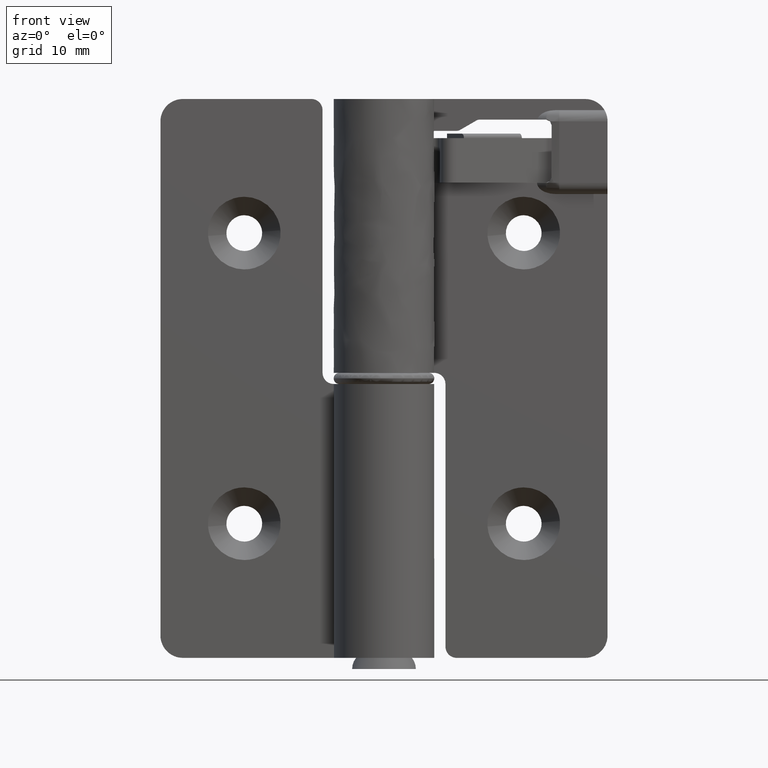
[diagram: clean part render]
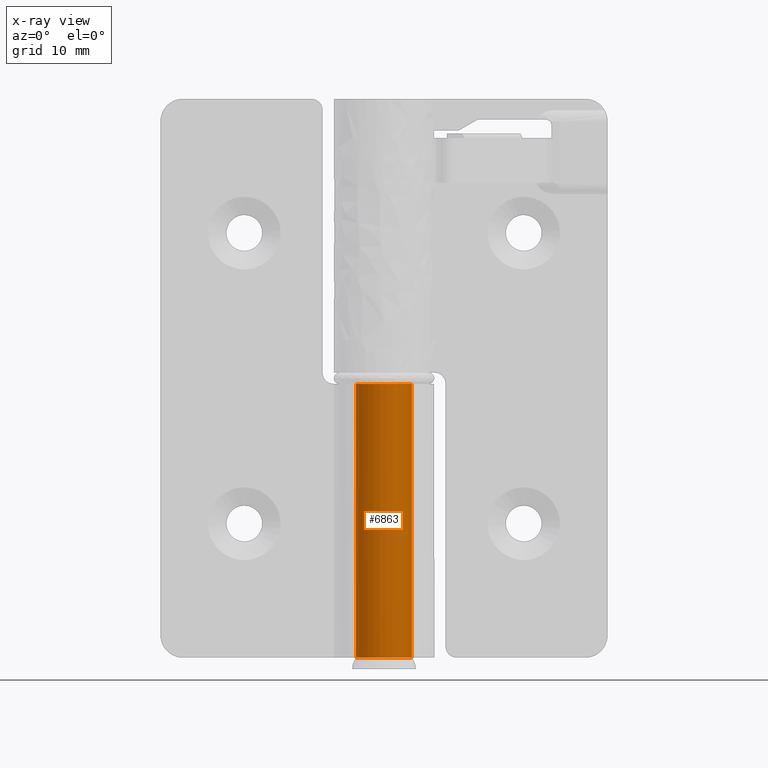
[diagram: x-ray — body ghosted, one internal face saturated and labeled with its STEP entity id]
A machine part, front view, then the same camera in x-ray: the body is ghosted and one INTERNAL B-rep face — a face not visible from any outside direction — is saturated and labeled: STEP entity #6863.
In plain terms, the highlighted face is a freeform B-spline surface patch.
Its self-contained STEP definition (entity closure, byte-faithful):
#6535=CARTESIAN_POINT('',(-1.732658E-011,2.500000000000045,24.500000000000000));
#6536=VERTEX_POINT('',#6535);
#6542=CARTESIAN_POINT('',(-2.239516041206940,1.111111111103862,24.500000000000000));
#6543=VERTEX_POINT('',#6542);
#6544=CARTESIAN_POINT('',(-2.239516041206940,1.111111111103862,24.500000000000000));
#6545=CARTESIAN_POINT('',(-2.318124278553539,0.952740925311778,24.499999999999879));
#6546=CARTESIAN_POINT('',(-2.417984747733534,0.682751003347246,24.500000000000131));
#6547=CARTESIAN_POINT('',(-2.510026740155862,0.184916230512072,24.499999999999879));
#6548=CARTESIAN_POINT('',(-2.502999120842344,-0.307585409154723,24.500000000000149));
#6549=CARTESIAN_POINT('',(-2.385528786070434,-0.783918930928652,24.499999999999940));
#6550=CARTESIAN_POINT('',(-2.213347831577249,-1.187488323383108,24.500000000000028));
#6551=CARTESIAN_POINT('',(-1.980461088266853,-1.550840180321250,24.500000000000028));
#6552=CARTESIAN_POINT('',(-1.641954793178059,-1.905603727061023,24.499999999999979));
#6553=CARTESIAN_POINT('',(-1.289916601176591,-2.155264951253006,24.500000000000021));
#6554=CARTESIAN_POINT('',(-0.910052972147528,-2.338825604961932,24.500000000000000));
#6555=CARTESIAN_POINT('',(-0.506222036306478,-2.463155228888288,24.499999999999989));
#6556=CARTESIAN_POINT('',(-0.010034031447983,-2.518828768327045,24.500000000000039));
#6557=CARTESIAN_POINT('',(0.554722450707133,-2.461926988062259,24.500000000000188));
#6558=CARTESIAN_POINT('',(1.107191403463212,-2.267793770801172,24.499999999999432));
#6559=CARTESIAN_POINT('',(1.554962400990345,-1.977375483299615,24.500000000000270));
#6560=CARTESIAN_POINT('',(1.865021394024695,-1.678302189364306,24.500000000000110));
#6561=CARTESIAN_POINT('',(2.117555642636913,-1.350930292813365,24.499999999999972));
#6562=CARTESIAN_POINT('',(2.324785254569362,-0.962718757544494,24.499999999999520));
#6563=CARTESIAN_POINT('',(2.456815271059784,-0.525460512932785,24.500000000000750));
#6564=CARTESIAN_POINT('',(2.507990198263587,-0.106381976991416,24.499999999999709));
#6565=CARTESIAN_POINT('',(2.494350198343573,0.281949421989889,24.500000000001592));
#6566=CARTESIAN_POINT('',(2.402716686115304,0.754443567985649,24.499999999999691));
#6567=CARTESIAN_POINT('',(2.175210691001721,1.294439136285538,24.500000000000050));
#6568=CARTESIAN_POINT('',(1.794227351555887,1.773757743165024,24.500000000000099));
#6569=CARTESIAN_POINT('',(1.402187601164685,2.082194453864021,24.499999999999719));
#6570=CARTESIAN_POINT('',(1.019321795364896,2.296498143990576,24.500000000001322));
#6571=CARTESIAN_POINT('',(0.564087816303929,2.456747579053332,24.499999999996479));
#6572=CARTESIAN_POINT('',(0.193649654469888,2.500034017702783,24.500000000005080));
#6573=CARTESIAN_POINT('',(-1.732658E-011,2.500000000000045,24.500000000000000));
#6574=B_SPLINE_CURVE_WITH_KNOTS('',3,(#6544,#6545,#6546,#6547,#6548,#6549,#6550,#6551,#6552,#6553,#6554,#6555,#6556,#6557,#6558,#6559,#6560,#6561,#6562,#6563,#6564,#6565,#6566,#6567,#6568,#6569,#6570,#6571,#6572,#6573),.UNSPECIFIED.,.F.,.U.,(4,1,1,1,1,1,1,1,1,1,1,1,1,1,1,1,1,1,1,1,1,1,1,1,1,1,1,4),(0.000000263102690,0.530410659239662,0.858780948427620,1.515517852654085,1.995433769212294,2.323797192142958,2.828977944853850,3.283605305776868,3.788773347232938,4.117141517944251,4.546546124654817,5.051725107593286,5.607424560500584,6.238900054038932,6.794542204389796,7.198689148685232,7.527057186439767,8.032240757765196,8.512155473980940,8.891037046179051,9.295185986244341,9.674080992403475,10.330763817478600,11.038012282425340,11.492674858158180,11.821044780304851,12.351469037584231,12.932412433119300),.UNSPECIFIED.);
#6575=EDGE_CURVE('',#6543,#6536,#6574,.T.);
#6627=CARTESIAN_POINT('',(-1.732658E-011,2.500000000000045,0.0));
#6628=VERTEX_POINT('',#6627);
#6681=CARTESIAN_POINT('',(-2.239516041206940,1.111111111103860,0.0));
#6682=VERTEX_POINT('',#6681);
#6688=CARTESIAN_POINT('',(-1.732658E-011,2.500000000000045,0.0));
#6689=CARTESIAN_POINT('',(0.159964982558469,2.500015040072921,0.0));
#6690=CARTESIAN_POINT('',(0.479896954839767,2.469196229971502,0.0));
#6691=CARTESIAN_POINT('',(0.909729870957923,2.341889332753164,0.0));
#6692=CARTESIAN_POINT('',(1.333508855146141,2.132101474255314,0.0));
#6693=CARTESIAN_POINT('',(1.671579523892169,1.876900968262256,0.0));
#6694=CARTESIAN_POINT('',(1.975542855446874,1.548864091699711,0.0));
#6695=CARTESIAN_POINT('',(2.182740206525030,1.239917391234453,0.0));
#6696=CARTESIAN_POINT('',(2.349548187546801,0.880136741140410,0.0));
#6697=CARTESIAN_POINT('',(2.471799325299377,0.467052610779662,0.0));
#6698=CARTESIAN_POINT('',(2.514696282860865,0.020124166501046,0.0));
#6699=CARTESIAN_POINT('',(2.473139472172131,-0.433942736688326,0.0));
#6700=CARTESIAN_POINT('',(2.354786162234829,-0.892146255314071,0.0));
#6701=CARTESIAN_POINT('',(2.125109886267470,-1.355751285869759,0.0));
#6702=CARTESIAN_POINT('',(1.815573733931907,-1.736683441253187,0.0));
#6703=CARTESIAN_POINT('',(1.471944759307613,-2.036114559131193,0.0));
#6704=CARTESIAN_POINT('',(1.045016084715200,-2.294995826143267,0.0));
#6705=CARTESIAN_POINT('',(0.472622872115431,-2.483269850775106,0.0));
#6706=CARTESIAN_POINT('',(-0.146231073421056,-2.520452358102925,0.0));
#6707=CARTESIAN_POINT('',(-0.671081348973059,-2.423572574487158,0.0));
#6708=CARTESIAN_POINT('',(-1.143564517126878,-2.240684970382407,0.0));
#6709=CARTESIAN_POINT('',(-1.538216533827393,-1.992538969134607,0.0));
#6710=CARTESIAN_POINT('',(-1.867895435206376,-1.677025985732060,0.0));
#6711=CARTESIAN_POINT('',(-2.123576558768975,-1.341279975435104,0.0));
#6712=CARTESIAN_POINT('',(-2.312542670134028,-0.981933108129545,0.0));
#6713=CARTESIAN_POINT('',(-2.465678995221036,-0.507851506196781,0.0));
#6714=CARTESIAN_POINT('',(-2.520784250599583,-0.010175639846944,0.0));
#6715=CARTESIAN_POINT('',(-2.455535697833576,0.569805582934639,0.0));
#6716=CARTESIAN_POINT('',(-2.333112032922046,0.922577699931154,0.0));
#6717=CARTESIAN_POINT('',(-2.239516041206940,1.111111111103860,0.0));
#6718=B_SPLINE_CURVE_WITH_KNOTS('',3,(#6688,#6689,#6690,#6691,#6692,#6693,#6694,#6695,#6696,#6697,#6698,#6699,#6700,#6701,#6702,#6703,#6704,#6705,#6706,#6707,#6708,#6709,#6710,#6711,#6712,#6713,#6714,#6715,#6716,#6717),.UNSPECIFIED.,.F.,.U.,(4,1,1,1,1,1,1,1,1,1,1,1,1,1,1,1,1,1,1,1,1,1,1,1,1,1,1,4),(0.000000263103313,0.479895009764849,0.959814039951361,1.338701906301806,1.894399400000111,2.222768109413655,2.677437727420276,3.005793985569977,3.409913892704092,3.965596597010217,4.344479916476892,4.773879277718756,5.380089294632669,5.885270131794043,6.238900054039295,6.744026869668627,7.375509792394367,8.032240757765370,8.587942057539255,8.966827548899969,9.547787281304565,9.977129592623573,10.330763817478770,10.810677363168271,11.189565296376919,11.821044780304890,12.300958325640419,12.932412433119289),.UNSPECIFIED.);
#6719=EDGE_CURVE('',#6628,#6682,#6718,.T.);
#6822=CARTESIAN_POINT('',(-2.239516041206940,1.111111111103862,24.500000000000000));
#6823=CARTESIAN_POINT('',(-2.239516041206940,1.111111111103860,0.0));
#6824=QUASI_UNIFORM_CURVE('',1,(#6822,#6823),.UNSPECIFIED.,.F.,.U.);
#6825=EDGE_CURVE('',#6543,#6682,#6824,.T.);
#6831=CARTESIAN_POINT('',(-2.197042781668058,1.192896900641946,25.112500000000001));
#6832=CARTESIAN_POINT('',(-2.197042781668058,1.192896900641946,-0.627812499999997));
#6833=CARTESIAN_POINT('',(-3.644142438028549,-1.472329115652353,25.112500000000001));
#6834=CARTESIAN_POINT('',(-3.644142438028549,-1.472329115652353,-0.627812499999997));
#6835=CARTESIAN_POINT('',(-0.751764498762249,-2.384292376873038,25.112500000000001));
#6836=CARTESIAN_POINT('',(-0.751764498762249,-2.384292376873038,-0.627812499999997));
#6837=CARTESIAN_POINT('',(2.140613440504049,-3.296255638093724,25.112500000000001));
#6838=CARTESIAN_POINT('',(2.140613440504049,-3.296255638093724,-0.627812499999997));
#6839=CARTESIAN_POINT('',(2.483929639183175,-0.283008034411752,25.112500000000001));
#6840=CARTESIAN_POINT('',(2.483929639183175,-0.283008034411752,-0.627812499999997));
#6841=CARTESIAN_POINT('',(2.827245837862300,2.730239569270219,25.112500000000001));
#6842=CARTESIAN_POINT('',(2.827245837862300,2.730239569270219,-0.627812499999997));
#6843=CARTESIAN_POINT('',(-0.196147739336913,2.492293334332231,25.112500000000001));
#6844=CARTESIAN_POINT('',(-0.196147739336913,2.492293334332231,-0.627812499999997));
#6852=(BOUNDED_SURFACE()B_SPLINE_SURFACE(1,2,((#6831,#6833,#6835,#6837,#6839,#6841,#6843),(#6832,#6834,#6836,#6838,#6840,#6842,#6844)),.UNSPECIFIED.,.F.,.F.,.U.)B_SPLINE_SURFACE_WITH_KNOTS((2,2),(3,2,2,3),(0.0,25.740312500000009),(0.0,4.716306187712294,9.432612375424588,14.148918563136879),.UNSPECIFIED.)GEOMETRIC_REPRESENTATION_ITEM()RATIONAL_B_SPLINE_SURFACE(((1.0,0.636078220277764,1.0,0.636078220277764,1.0,0.636078220277764,1.0),(1.0,0.636078220277764,1.0,0.636078220277764,1.0,0.636078220277764,1.0)))REPRESENTATION_ITEM('')SURFACE());
#6853=ORIENTED_EDGE('',*,*,#6825,.F.);
#6854=ORIENTED_EDGE('',*,*,#6575,.T.);
#6855=CARTESIAN_POINT('',(-1.732658E-011,2.500000000000045,24.500000000000000));
#6856=CARTESIAN_POINT('',(-1.732658E-011,2.500000000000045,0.0));
#6857=QUASI_UNIFORM_CURVE('',1,(#6855,#6856),.UNSPECIFIED.,.F.,.U.);
#6858=EDGE_CURVE('',#6536,#6628,#6857,.T.);
#6859=ORIENTED_EDGE('',*,*,#6858,.T.);
#6860=ORIENTED_EDGE('',*,*,#6719,.T.);
#6861=EDGE_LOOP('',(#6853,#6854,#6859,#6860));
#6862=FACE_OUTER_BOUND('',#6861,.T.);
#6863=ADVANCED_FACE('',(#6862),#6852,.F.);